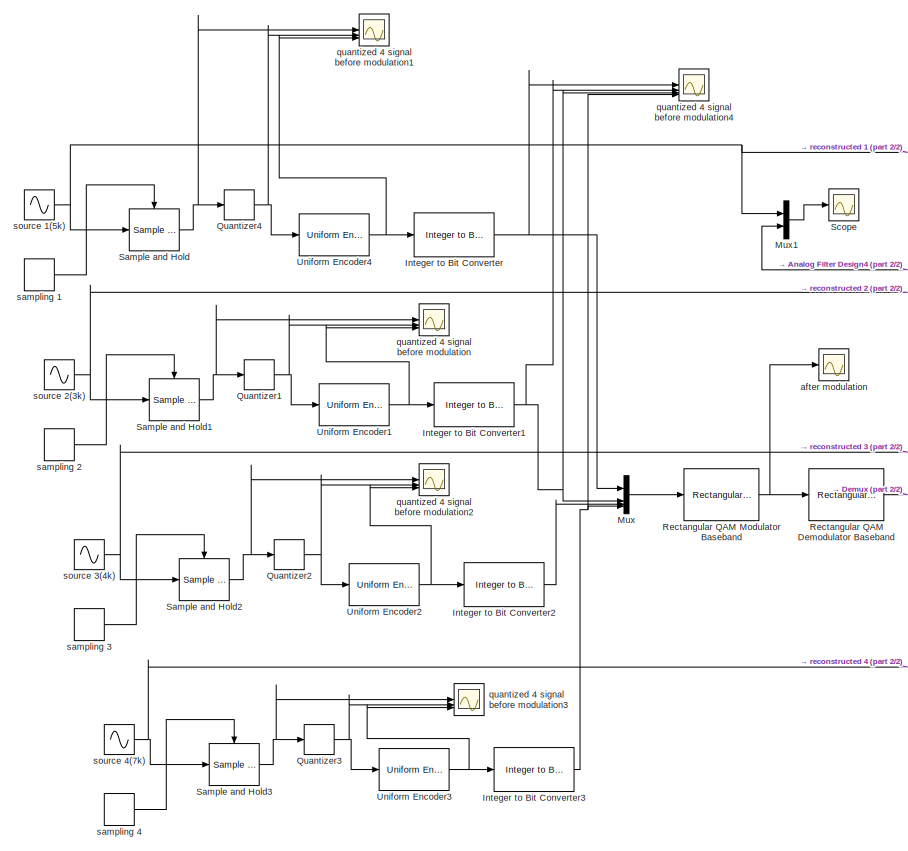
[diagram: root canvas - part 1/2, left side, full height]
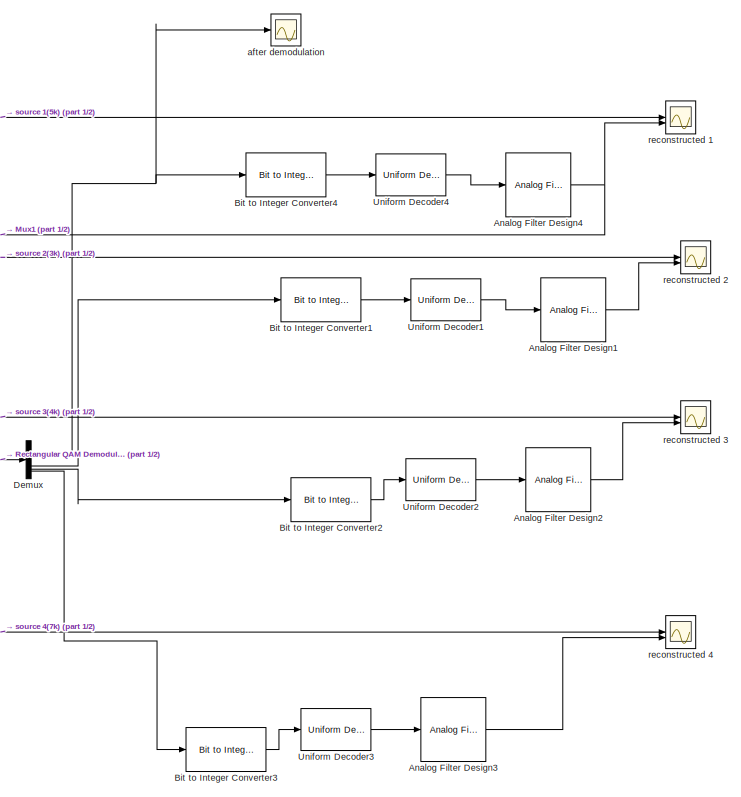
[diagram: root canvas - part 2/2, right side, full height]
MODEL slx_f6cd674d9374
KIND model
CONFIG AbsTol = auto
CONFIG EnableMultiTasking = off
CONFIG FixedStep = auto
CONFIG MaxStep = auto
CONFIG MinStep = auto
CONFIG RelTol = 1e-3
CONFIG SampleTimeConstraint = Unconstrained
CONFIG SolverName = VariableStepAuto
CONFIG StartTime = 0.0
CONFIG StopTime = 10.0
BLOCK [Reference] Analog Filter Design1  REF=dspfdesign/Analog
Filter Design
  SourceBlock = dspfdesign/Analog\nFilter Design
  SourceType = Analog Filter Design
BLOCK [Reference] Analog Filter Design2  REF=dspfdesign/Analog
Filter Design
  SourceBlock = dspfdesign/Analog\nFilter Design
  SourceType = Analog Filter Design
BLOCK [Reference] Analog Filter Design3  REF=dspfdesign/Analog
Filter Design
  SourceBlock = dspfdesign/Analog\nFilter Design
  SourceType = Analog Filter Design
BLOCK [Reference] Analog Filter Design4  REF=dspfdesign/Analog
Filter Design
  SourceBlock = dspfdesign/Analog\nFilter Design
  SourceType = Analog Filter Design
BLOCK [Reference] Bit to Integer Converter1  REF=simulink/Logic and Bit
Operations/Bit to Integer
Converter
  LibrarySourceBlock = commutil2/Bit to Integer\nConverter
  SourceBlock = simulink/Logic and Bit\nOperations/Bit to Integer\nConverter
  SourceType = Bit to Integer Converter
BLOCK [Reference] Bit to Integer Converter2  REF=simulink/Logic and Bit
Operations/Bit to Integer
Converter
  LibrarySourceBlock = commutil2/Bit to Integer\nConverter
  SourceBlock = simulink/Logic and Bit\nOperations/Bit to Integer\nConverter
  SourceType = Bit to Integer Converter
BLOCK [Reference] Bit to Integer Converter3  REF=simulink/Logic and Bit
Operations/Bit to Integer
Converter
  LibrarySourceBlock = commutil2/Bit to Integer\nConverter
  SourceBlock = simulink/Logic and Bit\nOperations/Bit to Integer\nConverter
  SourceType = Bit to Integer Converter
BLOCK [Reference] Bit to Integer Converter4  REF=simulink/Logic and Bit
Operations/Bit to Integer
Converter
  LibrarySourceBlock = commutil2/Bit to Integer\nConverter
  SourceBlock = simulink/Logic and Bit\nOperations/Bit to Integer\nConverter
  SourceType = Bit to Integer Converter
BLOCK [Demux] Demux
BLOCK [Reference] Integer to Bit Converter  REF=simulink/Logic and Bit
Operations/Integer to Bit
Converter
  LibrarySourceBlock = commutil2/Integer to Bit\nConverter
  SourceBlock = simulink/Logic and Bit\nOperations/Integer to Bit\nConverter
  SourceType = Integer to Bit Converter
BLOCK [Reference] Integer to Bit Converter1  REF=simulink/Logic and Bit
Operations/Integer to Bit
Converter
  LibrarySourceBlock = commutil2/Integer to Bit\nConverter
  SourceBlock = simulink/Logic and Bit\nOperations/Integer to Bit\nConverter
  SourceType = Integer to Bit Converter
BLOCK [Reference] Integer to Bit Converter2  REF=simulink/Logic and Bit
Operations/Integer to Bit
Converter
  LibrarySourceBlock = commutil2/Integer to Bit\nConverter
  SourceBlock = simulink/Logic and Bit\nOperations/Integer to Bit\nConverter
  SourceType = Integer to Bit Converter
BLOCK [Reference] Integer to Bit Converter3  REF=simulink/Logic and Bit
Operations/Integer to Bit
Converter
  LibrarySourceBlock = commutil2/Integer to Bit\nConverter
  SourceBlock = simulink/Logic and Bit\nOperations/Integer to Bit\nConverter
  SourceType = Integer to Bit Converter
BLOCK [Mux] Mux
  DisplayOption = bar
BLOCK [Mux] Mux1
  DisplayOption = bar
  Inputs = 2
BLOCK [Quantizer] Quantizer1
  QuantizationInterval = 0.125
BLOCK [Quantizer] Quantizer2
  QuantizationInterval = 0.125
BLOCK [Quantizer] Quantizer3
  QuantizationInterval = 0.125
BLOCK [Quantizer] Quantizer4
  QuantizationInterval = 0.125
BLOCK [Reference] Rectangular QAM Demodulator Baseband  REF=commdigbbndam3/Rectangular QAM
Demodulator
Baseband
  LibrarySourceBlock = commhdldigbbndam/Rectangular QAM\nDemodulator\nBaseband
  SourceBlock = commdigbbndam3/Rectangular QAM\nDemodulator\nBaseband
  SourceType = Rectangular QAM Demodulator Baseband
BLOCK [Reference] Rectangular QAM Modulator Baseband  REF=commdigbbndam3/Rectangular QAM
Modulator
Baseband
  LibrarySourceBlock = commhdldigbbndam/Rectangular QAM\nModulator\nBaseband
  SourceBlock = commdigbbndam3/Rectangular QAM\nModulator\nBaseband
  SourceType = Rectangular QAM Modulator Baseband
BLOCK [Reference] Sample and Hold  REF=dspsigops/Sample
and Hold
  SourceBlock = dspsigops/Sample\nand Hold
  SourceType = Sample and Hold
BLOCK [Reference] Sample and Hold1  REF=dspsigops/Sample
and Hold
  SourceBlock = dspsigops/Sample\nand Hold
  SourceType = Sample and Hold
BLOCK [Reference] Sample and Hold2  REF=dspsigops/Sample
and Hold
  SourceBlock = dspsigops/Sample\nand Hold
  SourceType = Sample and Hold
BLOCK [Reference] Sample and Hold3  REF=dspsigops/Sample
and Hold
  SourceBlock = dspsigops/Sample\nand Hold
  SourceType = Sample and Hold
BLOCK [Scope] Scope
  Floating = off
  NumInputPorts = 1
  ScopeSpecificationString = Simulink.scopes.TimeScopeBlockCfg('CurrentConfiguration', extmgr.ConfigurationSet(extmgr.Configuration('Core','General UI',true),extmgr.Configuration('Core','Source UI',true),extmgr.Configuration('Sources','WiredSimulink',true,'DataLoggingVariableName','ScopeData6'),extmgr.Configuration('Visuals','Time Domain',true,'SerializedDisplays',{struct('MinYLimReal','-1.25','MaxYLimReal','1.25','YLabelReal...<+1537ch>
BLOCK [Reference] Uniform Decoder1  REF=dspquant2/Uniform
Decoder
  SourceBlock = dspquant2/Uniform\nDecoder
  SourceType = Uniform Decoder
BLOCK [Reference] Uniform Decoder2  REF=dspquant2/Uniform
Decoder
  SourceBlock = dspquant2/Uniform\nDecoder
  SourceType = Uniform Decoder
BLOCK [Reference] Uniform Decoder3  REF=dspquant2/Uniform
Decoder
  SourceBlock = dspquant2/Uniform\nDecoder
  SourceType = Uniform Decoder
BLOCK [Reference] Uniform Decoder4  REF=dspquant2/Uniform
Decoder
  SourceBlock = dspquant2/Uniform\nDecoder
  SourceType = Uniform Decoder
BLOCK [Reference] Uniform Encoder1  REF=dspquant2/Uniform
Encoder
  SourceBlock = dspquant2/Uniform\nEncoder
  SourceType = Uniform Encoder
BLOCK [Reference] Uniform Encoder2  REF=dspquant2/Uniform
Encoder
  SourceBlock = dspquant2/Uniform\nEncoder
  SourceType = Uniform Encoder
BLOCK [Reference] Uniform Encoder3  REF=dspquant2/Uniform
Encoder
  SourceBlock = dspquant2/Uniform\nEncoder
  SourceType = Uniform Encoder
BLOCK [Reference] Uniform Encoder4  REF=dspquant2/Uniform
Encoder
  SourceBlock = dspquant2/Uniform\nEncoder
  SourceType = Uniform Encoder
BLOCK [Scope] after demodulation
  Floating = off
  NumInputPorts = 4
  ScopeSpecificationString = Simulink.scopes.TimeScopeBlockCfg('CurrentConfiguration', extmgr.ConfigurationSet(extmgr.Configuration('Core','General UI',true),extmgr.Configuration('Core','Source UI',true),extmgr.Configuration('Sources','WiredSimulink',true,'DataLoggingVariableName','ScopeData4'),extmgr.Configuration('Visuals','Time Domain',true,'SerializedDisplays',{struct('MinYLimReal','-3.08072','MaxYLimReal','2.92544','YLab...<+3948ch>
BLOCK [Scope] after modulation
  Floating = off
  NumInputPorts = 1
  ScopeSpecificationString = Simulink.scopes.TimeScopeBlockCfg('CurrentConfiguration', extmgr.ConfigurationSet(extmgr.Configuration('Core','General UI',true),extmgr.Configuration('Core','Source UI',true),extmgr.Configuration('Sources','WiredSimulink',true,'DataLoggingVariableName','ScopeData3'),extmgr.Configuration('Visuals','Time Domain',true,'SerializedDisplays',{struct('MinYLimReal','-10.08684','MaxYLimReal','3.42702','YLa...<+2022ch>
BLOCK [Scope] quantized 4 signal before modulation
  Floating = off
  NumInputPorts = 4
  ScopeSpecificationString = Simulink.scopes.TimeScopeBlockCfg('CurrentConfiguration', extmgr.ConfigurationSet(extmgr.Configuration('Core','General UI',true),extmgr.Configuration('Core','Source UI',true),extmgr.Configuration('Sources','WiredSimulink',true,'DataLoggingVariableName','ScopeData2'),extmgr.Configuration('Visuals','Time Domain',true,'SerializedDisplays',{struct('MinYLimReal','-3.08072','MaxYLimReal','2.92544','YLab...<+4243ch>
BLOCK [Scope] quantized 4 signal before modulation1
  Floating = off
  NumInputPorts = 4
  ScopeSpecificationString = Simulink.scopes.TimeScopeBlockCfg('CurrentConfiguration', extmgr.ConfigurationSet(extmgr.Configuration('Core','General UI',true),extmgr.Configuration('Core','Source UI',true),extmgr.Configuration('Sources','WiredSimulink',true,'DataLoggingVariableName','ScopeData1'),extmgr.Configuration('Visuals','Time Domain',true,'SerializedDisplays',{struct('MinYLimReal','-3.08072','MaxYLimReal','2.92544','YLab...<+4243ch>
BLOCK [Scope] quantized 4 signal before modulation2
  Floating = off
  NameLocation = left
  NumInputPorts = 4
  ScopeSpecificationString = Simulink.scopes.TimeScopeBlockCfg('CurrentConfiguration', extmgr.ConfigurationSet(extmgr.Configuration('Core','General UI',true),extmgr.Configuration('Core','Source UI',true),extmgr.Configuration('Sources','WiredSimulink',true,'DataLoggingVariableName','ScopeData3'),extmgr.Configuration('Visuals','Time Domain',true,'SerializedDisplays',{struct('MinYLimReal','-3.08072','MaxYLimReal','2.92544','YLab...<+4243ch>
BLOCK [Scope] quantized 4 signal before modulation3
  Floating = off
  NumInputPorts = 4
  ScopeSpecificationString = Simulink.scopes.TimeScopeBlockCfg('CurrentConfiguration', extmgr.ConfigurationSet(extmgr.Configuration('Core','General UI',true),extmgr.Configuration('Core','Source UI',true),extmgr.Configuration('Sources','WiredSimulink',true,'DataLoggingVariableName','ScopeData4'),extmgr.Configuration('Visuals','Time Domain',true,'SerializedDisplays',{struct('MinYLimReal','-3.08072','MaxYLimReal','2.92544','YLab...<+4243ch>
BLOCK [Scope] quantized 4 signal before modulation4
  Floating = off
  NumInputPorts = 4
  ScopeSpecificationString = Simulink.scopes.TimeScopeBlockCfg('CurrentConfiguration', extmgr.ConfigurationSet(extmgr.Configuration('Core','General UI',true),extmgr.Configuration('Core','Source UI',true),extmgr.Configuration('Sources','WiredSimulink',true,'DataLoggingVariableName','ScopeData5'),extmgr.Configuration('Visuals','Time Domain',true,'SerializedDisplays',{struct('MinYLimReal','-3.08072','MaxYLimReal','2.92544','YLab...<+4243ch>
BLOCK [Scope] reconstructed 1
  Floating = off
  NumInputPorts = 2
  ScopeSpecificationString = Simulink.scopes.TimeScopeBlockCfg('CurrentConfiguration', extmgr.ConfigurationSet(extmgr.Configuration('Core','General UI',true),extmgr.Configuration('Core','Source UI',true),extmgr.Configuration('Sources','WiredSimulink',true,'DataLoggingVariableName','ScopeData1'),extmgr.Configuration('Visuals','Time Domain',true,'SerializedDisplays',{struct('MinYLimReal','-3.08072','MaxYLimReal','2.92544','YLab...<+2304ch>
BLOCK [Scope] reconstructed 2
  Floating = off
  NumInputPorts = 2
  ScopeSpecificationString = Simulink.scopes.TimeScopeBlockCfg('CurrentConfiguration', extmgr.ConfigurationSet(extmgr.Configuration('Core','General UI',true),extmgr.Configuration('Core','Source UI',true),extmgr.Configuration('Sources','WiredSimulink',true),extmgr.Configuration('Visuals','Time Domain',true,'SerializedDisplays',{struct('MinYLimReal','-3.08072','MaxYLimReal','2.92544','YLabelReal','','MinYLimMag','0.00000','MaxY...<+1520ch>
BLOCK [Scope] reconstructed 3
  Floating = off
  NumInputPorts = 2
  ScopeSpecificationString = Simulink.scopes.TimeScopeBlockCfg('CurrentConfiguration', extmgr.ConfigurationSet(extmgr.Configuration('Core','General UI',true),extmgr.Configuration('Core','Source UI',true),extmgr.Configuration('Sources','WiredSimulink',true,'DataLoggingVariableName','ScopeData5'),extmgr.Configuration('Visuals','Time Domain',true,'SerializedDisplays',{struct('MinYLimReal','-3.08072','MaxYLimReal','2.92544','YLab...<+1557ch>
BLOCK [Scope] reconstructed 4
  Floating = off
  NumInputPorts = 2
  ScopeSpecificationString = Simulink.scopes.TimeScopeBlockCfg('CurrentConfiguration', extmgr.ConfigurationSet(extmgr.Configuration('Core','General UI',true),extmgr.Configuration('Core','Source UI',true),extmgr.Configuration('Sources','WiredSimulink',true,'DataLoggingVariableName','ScopeData6'),extmgr.Configuration('Visuals','Time Domain',true,'SerializedDisplays',{struct('MinYLimReal','-3.08072','MaxYLimReal','2.92544','YLab...<+2282ch>
BLOCK [DiscretePulseGenerator] sampling 1
  Period = 1/40000
  PulseType = Time based
  PulseWidth = 50
BLOCK [DiscretePulseGenerator] sampling 2
  Period = 1/24000
  PulseType = Time based
  PulseWidth = 50
BLOCK [DiscretePulseGenerator] sampling 3
  Period = 1/32000
  PulseType = Time based
  PulseWidth = 50
BLOCK [DiscretePulseGenerator] sampling 4
  Period = 1/56000
  PulseType = Time based
  PulseWidth = 50
BLOCK [Sin] source 1(5k)
  Frequency = 2*pi*5000
  Phase = pi/2
  SampleTime = 0
BLOCK [Sin] source 2(3k)
  Frequency = 2*pi*3000
  Phase = pi/2
  SampleTime = 0
BLOCK [Sin] source 3(4k)
  Frequency = 2*pi*4000
  Phase = pi/2
  SampleTime = 0
BLOCK [Sin] source 4(7k)
  Frequency = 2*pi*7000
  Phase = pi/2
  SampleTime = 0
LINE Analog Filter Design1:1 -> reconstructed 2:2
LINE Analog Filter Design2:1 -> reconstructed 3:2
LINE Analog Filter Design3:1 -> reconstructed 4:2
NET Analog Filter Design4:1 -> Mux1:2, reconstructed 1:2
LINE Bit to Integer Converter1:1 -> Uniform Decoder1:1
LINE Bit to Integer Converter2:1 -> Uniform Decoder2:1
LINE Bit to Integer Converter3:1 -> Uniform Decoder3:1
LINE Bit to Integer Converter4:1 -> Uniform Decoder4:1
NET Demux:1 -> Bit to Integer Converter4:1, after demodulation:1
LINE Demux:2 -> Bit to Integer Converter1:1
LINE Demux:3 -> Bit to Integer Converter2:1
LINE Demux:4 -> Bit to Integer Converter3:1
NET Integer to Bit Converter1:1 -> Mux:2, quantized 4 signal before modulation4:2, quantized 4 signal before modulation4:3
LINE Integer to Bit Converter2:1 -> Mux:3
NET Integer to Bit Converter3:1 -> Mux:4, quantized 4 signal before modulation4:4
NET Integer to Bit Converter:1 -> Mux:1, quantized 4 signal before modulation4:1
LINE Mux1:1 -> Scope:1
LINE Mux:1 -> Rectangular QAM Modulator Baseband:1
NET Quantizer1:1 -> Uniform Encoder1:1, quantized 4 signal before modulation:2
NET Quantizer2:1 -> Uniform Encoder2:1, quantized 4 signal before modulation2:2
NET Quantizer3:1 -> Uniform Encoder3:1, quantized 4 signal before modulation3:2
NET Quantizer4:1 -> Uniform Encoder4:1, quantized 4 signal before modulation1:2
LINE Rectangular QAM Demodulator Baseband:1 -> Demux:1
NET Rectangular QAM Modulator Baseband:1 -> Rectangular QAM Demodulator Baseband:1, after modulation:1
NET Sample and Hold1:1 -> Quantizer1:1, quantized 4 signal before modulation:1
NET Sample and Hold2:1 -> Quantizer2:1, quantized 4 signal before modulation2:1
NET Sample and Hold3:1 -> Quantizer3:1, quantized 4 signal before modulation3:1
NET Sample and Hold:1 -> Quantizer4:1, quantized 4 signal before modulation1:1
LINE Uniform Decoder1:1 -> Analog Filter Design1:1
LINE Uniform Decoder2:1 -> Analog Filter Design2:1
LINE Uniform Decoder3:1 -> Analog Filter Design3:1
LINE Uniform Decoder4:1 -> Analog Filter Design4:1
NET Uniform Encoder1:1 -> Integer to Bit Converter1:1, quantized 4 signal before modulation:3
NET Uniform Encoder2:1 -> Integer to Bit Converter2:1, quantized 4 signal before modulation2:3
NET Uniform Encoder3:1 -> Integer to Bit Converter3:1, quantized 4 signal before modulation3:3
NET Uniform Encoder4:1 -> Integer to Bit Converter:1, quantized 4 signal before modulation1:3
LINE sampling 1:1 -> Sample and Hold:trigger
LINE sampling 2:1 -> Sample and Hold1:trigger
LINE sampling 3:1 -> Sample and Hold2:trigger
LINE sampling 4:1 -> Sample and Hold3:trigger
NET source 1(5k):1 -> Mux1:1, Sample and Hold:1, reconstructed 1:1
NET source 2(3k):1 -> Sample and Hold1:1, reconstructed 2:1
NET source 3(4k):1 -> Sample and Hold2:1, reconstructed 3:1
NET source 4(7k):1 -> Sample and Hold3:1, reconstructed 4:1
note: NET lines group one-source signal fan-out (src -> all destinations, sorted); 1:1 wires keep LINE
